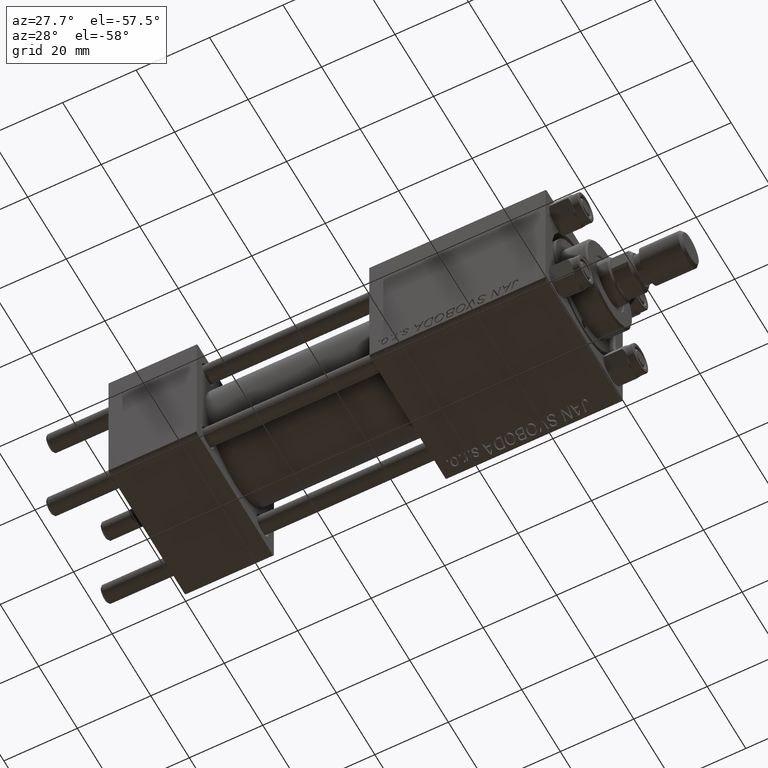
[diagram: clean part render]
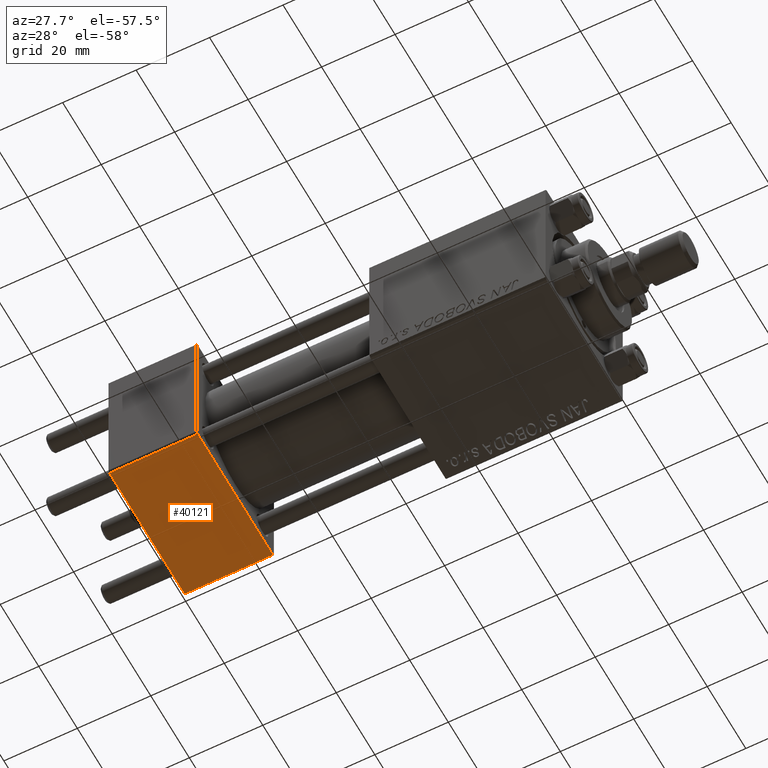
[diagram: same view with one face highlighted and labeled with its STEP entity id]
A machine part, auxiliary view. The second image highlights one B-rep face of the part: STEP entity #40121.
In plain terms, the highlighted planar face has unit normal (0, -0, -1).
Its self-contained STEP definition (entity closure, byte-faithful):
#186 = EDGE_CURVE ( 'NONE', #27529, #35285, #17803, .T. ) ;
#1043 = EDGE_LOOP ( 'NONE', ( #14335, #41092, #44795, #10466 ) ) ;
#3124 = LINE ( 'NONE', #23266, #30011 ) ;
#3748 = CARTESIAN_POINT ( 'NONE',  ( 0.000000000000000000, -19.50000000000000711, -20.00000000000000000 ) ) ;
#3808 = AXIS2_PLACEMENT_3D ( 'NONE', #43989, #36330, #17741 ) ;
#3961 = VECTOR ( 'NONE', #44576, 1000.000000000000000 ) ;
#5980 = CARTESIAN_POINT ( 'NONE',  ( 24.00000000000000000, -19.50000000000000711, -20.00000000000000000 ) ) ;
#6839 = EDGE_CURVE ( 'NONE', #35285, #15715, #6871, .T. ) ;
#6871 = LINE ( 'NONE', #25231, #3961 ) ;
#9168 = DIRECTION ( 'NONE',  ( -1.000000000000000000, 0.000000000000000000, 0.000000000000000000 ) ) ;
#10466 = ORIENTED_EDGE ( 'NONE', *, *, #34908, .T. ) ;
#10853 = EDGE_CURVE ( 'NONE', #27529, #25911, #3124, .T. ) ;
#11292 = DIRECTION ( 'NONE',  ( 0.000000000000000000, -1.000000000000000000, 1.734723475976807094E-16 ) ) ;
#11869 = VECTOR ( 'NONE', #40482, 1000.000000000000000 ) ;
#12577 = VECTOR ( 'NONE', #9168, 1000.000000000000000 ) ;
#14335 = ORIENTED_EDGE ( 'NONE', *, *, #10853, .F. ) ;
#15715 = VERTEX_POINT ( 'NONE', #5980 ) ;
#16814 = CARTESIAN_POINT ( 'NONE',  ( 0.000000000000000000, -19.50000000000000711, -20.00000000000000000 ) ) ;
#17741 = DIRECTION ( 'NONE',  ( 0.000000000000000000, 1.000000000000000000, -1.734723475976806848E-16 ) ) ;
#17803 = LINE ( 'NONE', #29014, #11869 ) ;
#21326 = FACE_OUTER_BOUND ( 'NONE', #1043, .T. ) ;
#23266 = CARTESIAN_POINT ( 'NONE',  ( 0.000000000000000000, 20.00000000000000000, -20.00000000000000711 ) ) ;
#25231 = CARTESIAN_POINT ( 'NONE',  ( 24.00000000000000000, 20.00000000000000000, -20.00000000000000711 ) ) ;
#25485 = LINE ( 'NONE', #16814, #12577 ) ;
#25911 = VERTEX_POINT ( 'NONE', #3748 ) ;
#27529 = VERTEX_POINT ( 'NONE', #39472 ) ;
#29014 = CARTESIAN_POINT ( 'NONE',  ( 24.00000000000000000, 19.50000000000000711, -20.00000000000000711 ) ) ;
#30011 = VECTOR ( 'NONE', #11292, 1000.000000000000000 ) ;
#34908 = EDGE_CURVE ( 'NONE', #15715, #25911, #25485, .T. ) ;
#35285 = VERTEX_POINT ( 'NONE', #37361 ) ;
#36330 = DIRECTION ( 'NONE',  ( 0.000000000000000000, -1.734723475976806848E-16, -1.000000000000000000 ) ) ;
#37361 = CARTESIAN_POINT ( 'NONE',  ( 24.00000000000000000, 19.50000000000000711, -20.00000000000000711 ) ) ;
#39472 = CARTESIAN_POINT ( 'NONE',  ( 0.000000000000000000, 19.50000000000000711, -20.00000000000000711 ) ) ;
#40121 = ADVANCED_FACE ( 'NONE', ( #21326 ), #47807, .T. ) ;
#40482 = DIRECTION ( 'NONE',  ( 1.000000000000000000, 0.000000000000000000, 0.000000000000000000 ) ) ;
#41092 = ORIENTED_EDGE ( 'NONE', *, *, #186, .T. ) ;
#43989 = CARTESIAN_POINT ( 'NONE',  ( 24.00000000000000000, 20.00000000000000000, -20.00000000000000711 ) ) ;
#44576 = DIRECTION ( 'NONE',  ( 0.000000000000000000, -1.000000000000000000, 1.734723475976807094E-16 ) ) ;
#44795 = ORIENTED_EDGE ( 'NONE', *, *, #6839, .T. ) ;
#47807 = PLANE ( 'NONE',  #3808 ) ;